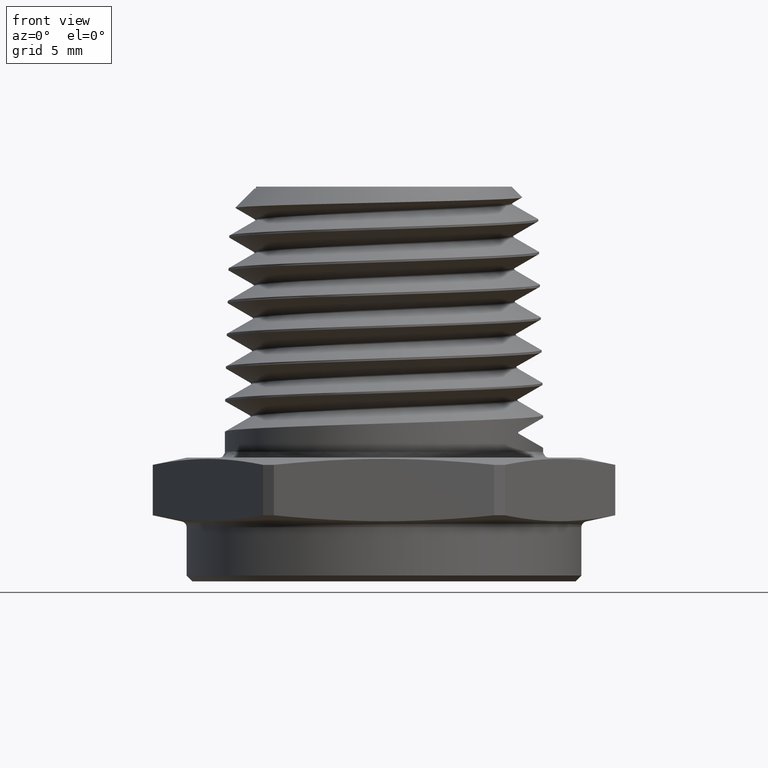
[diagram: clean part render]
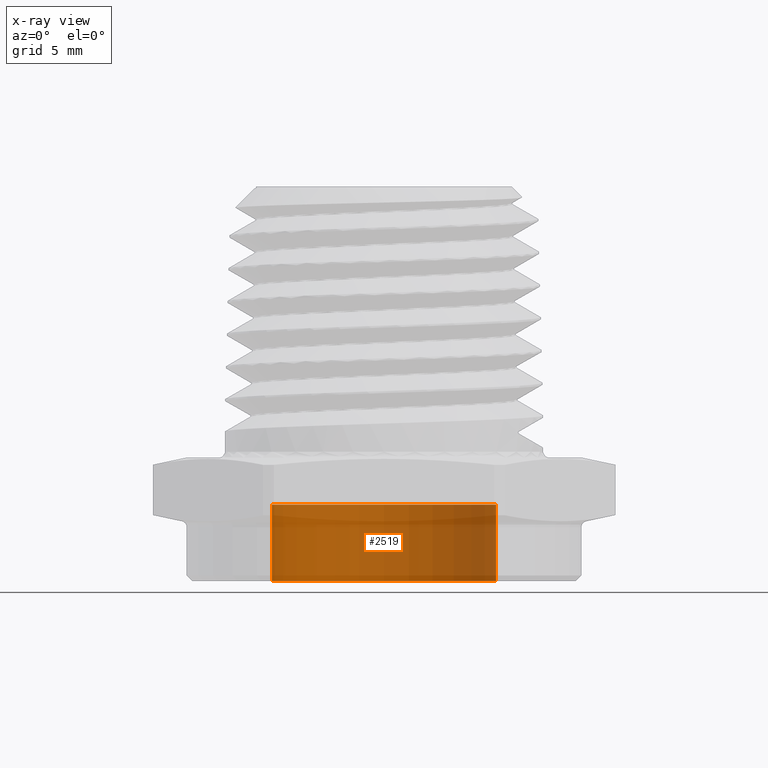
[diagram: x-ray — body ghosted, one internal face saturated and labeled with its STEP entity id]
A machine part, front view, then the same camera in x-ray: the body is ghosted and one INTERNAL B-rep face — a face not visible from any outside direction — is saturated and labeled: STEP entity #2519.
In plain terms, the highlighted cylindrical surface (partial cylindrical patch) has radius 4.826 mm, axis along (0, 0, -1).
Its self-contained STEP definition (entity closure, byte-faithful):
#838 = CARTESIAN_POINT ( 'NONE',  ( -3.414809992080328400E-017, 0.0000000000000000000, 0.02999999999999998800 ) ) ;
#839 = DIRECTION ( 'NONE',  ( 0.0000000000000000000, 0.0000000000000000000, -1.000000000000000000 ) ) ;
#848 = DIRECTION ( 'NONE',  ( -1.000000000000000000, 0.0000000000000000000, 0.0000000000000000000 ) ) ;
#1203 = EDGE_CURVE ( 'NONE', #1736, #1738, #2580, .T. ) ;
#1204 = EDGE_CURVE ( 'NONE', #1735, #1736, #2582, .T. ) ;
#1205 = EDGE_CURVE ( 'NONE', #1737, #1738, #2586, .T. ) ;
#1206 = EDGE_CURVE ( 'NONE', #1735, #1737, #2584, .T. ) ;
#1226 = AXIS2_PLACEMENT_3D ( 'NONE', #3749, #3750, #3751 ) ;
#1227 = AXIS2_PLACEMENT_3D ( 'NONE', #3753, #3754, #3755 ) ;
#1274 = AXIS2_PLACEMENT_3D ( 'NONE', #838, #839, #848 ) ;
#1351 = CYLINDRICAL_SURFACE ( 'NONE', #1274, 0.1899999999999999700 ) ;
#1503 = EDGE_LOOP ( 'NONE', ( #1555, #1556, #1557, #1558 ) ) ;
#1555 = ORIENTED_EDGE ( 'NONE', *, *, #1204, .T. ) ;
#1556 = ORIENTED_EDGE ( 'NONE', *, *, #1203, .T. ) ;
#1557 = ORIENTED_EDGE ( 'NONE', *, *, #1205, .F. ) ;
#1558 = ORIENTED_EDGE ( 'NONE', *, *, #1206, .F. ) ;
#1735 = VERTEX_POINT ( 'NONE', #2308 ) ;
#1736 = VERTEX_POINT ( 'NONE', #2292 ) ;
#1737 = VERTEX_POINT ( 'NONE', #2309 ) ;
#1738 = VERTEX_POINT ( 'NONE', #2249 ) ;
#2249 = CARTESIAN_POINT ( 'NONE',  ( 0.1899999999999999500, 2.326828918379970600E-017, -0.1000000000000000100 ) ) ;
#2292 = CARTESIAN_POINT ( 'NONE',  ( 0.1899999999999999500, 2.326828918379970600E-017, 0.02999999999999998800 ) ) ;
#2308 = CARTESIAN_POINT ( 'NONE',  ( -0.1900000000000000300, 0.0000000000000000000, 0.02999999999999998800 ) ) ;
#2309 = CARTESIAN_POINT ( 'NONE',  ( -0.1900000000000000300, 0.0000000000000000000, -0.1000000000000000100 ) ) ;
#2497 = FACE_OUTER_BOUND ( 'NONE', #1503, .T. ) ;
#2519 = ADVANCED_FACE ( 'NONE', ( #2497 ), #1351, .T. ) ;
#2580 = LINE ( 'NONE', #4460, #2585 ) ;
#2582 = CIRCLE ( 'NONE', #1226, 0.1899999999999999700 ) ;
#2584 = LINE ( 'NONE', #3752, #2589 ) ;
#2585 = VECTOR ( 'NONE', #3747, 39.37007874015748100 ) ;
#2586 = CIRCLE ( 'NONE', #1227, 0.1899999999999999700 ) ;
#2589 = VECTOR ( 'NONE', #3748, 39.37007874015748100 ) ;
#3747 = DIRECTION ( 'NONE',  ( 0.0000000000000000000, 0.0000000000000000000, -1.000000000000000000 ) ) ;
#3748 = DIRECTION ( 'NONE',  ( 0.0000000000000000000, 0.0000000000000000000, -1.000000000000000000 ) ) ;
#3749 = CARTESIAN_POINT ( 'NONE',  ( -3.414809992080328400E-017, 0.0000000000000000000, 0.02999999999999998800 ) ) ;
#3750 = DIRECTION ( 'NONE',  ( 0.0000000000000000000, 0.0000000000000000000, -1.000000000000000000 ) ) ;
#3751 = DIRECTION ( 'NONE',  ( -1.000000000000000000, 0.0000000000000000000, 0.0000000000000000000 ) ) ;
#3752 = CARTESIAN_POINT ( 'NONE',  ( -0.1900000000000000300, 0.0000000000000000000, 0.02999999999999998800 ) ) ;
#3753 = CARTESIAN_POINT ( 'NONE',  ( -3.414809992080328400E-017, 0.0000000000000000000, -0.1000000000000000100 ) ) ;
#3754 = DIRECTION ( 'NONE',  ( 0.0000000000000000000, 0.0000000000000000000, -1.000000000000000000 ) ) ;
#3755 = DIRECTION ( 'NONE',  ( -1.000000000000000000, 0.0000000000000000000, 0.0000000000000000000 ) ) ;
#4460 = CARTESIAN_POINT ( 'NONE',  ( 0.1899999999999999500, 2.326828918379970600E-017, 0.02999999999999998800 ) ) ;